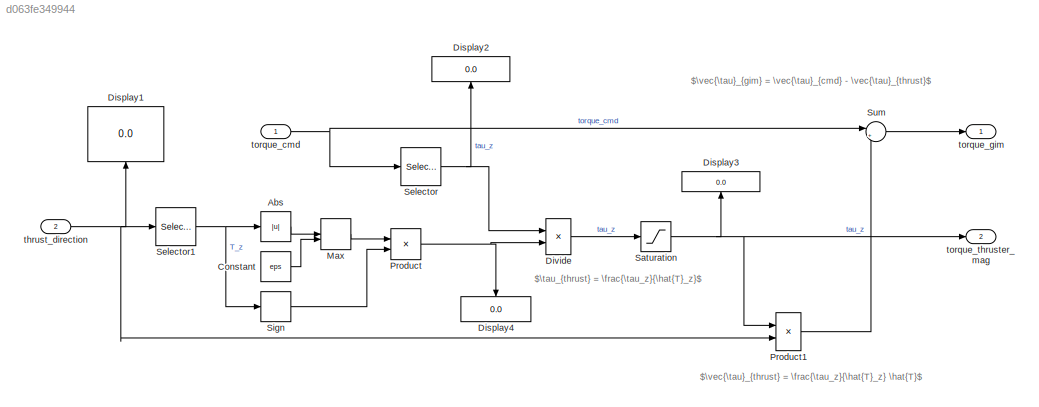
MODEL slx_d063fe349944
KIND model
CONFIG AbsTol = auto
CONFIG EnableMultiTasking = off
CONFIG FixedStep = 0.001
CONFIG MaxStep = auto
CONFIG MinStep = auto
CONFIG RelTol = 1e-3
CONFIG SampleTimeConstraint = Unconstrained
CONFIG SolverName = FixedStepAuto
CONFIG StartTime = 0.0
CONFIG StopTime = 10.0
BLOCK [Abs] Abs
  SaturateOnIntegerOverflow = off
BLOCK [Constant] Constant
  Value = eps
BLOCK [Display] Display1
  Decimation = 1
  NameLocation = right
BLOCK [Display] Display2
  Decimation = 1
  NameLocation = right
BLOCK [Display] Display3
  Decimation = 1
  NameLocation = right
BLOCK [Display] Display4
  Decimation = 1
  NameLocation = left
BLOCK [Product] Divide
  Inputs = */
BLOCK [MinMax] Max
  Function = max
  Inputs = 2
BLOCK [Product] Product
BLOCK [Product] Product1
BLOCK [Saturate] Saturation
  LowerLimit = -.45
  UpperLimit = .45
BLOCK [Selector] Selector
  IndexOptions = Index vector (dialog)
  Indices = 3
  InputPortWidth = 3
  OutputSizes = 1
BLOCK [Selector] Selector1
  IndexOptions = Index vector (dialog)
  Indices = 3
  InputPortWidth = 3
  OutputSizes = 1
BLOCK [Signum] Sign
BLOCK [Sum] Sum
  Inputs = |+-
BLOCK [Inport] thrust_direction
  NameLocation = left
  Port = 2
  PortDimensions = 3
BLOCK [Inport] torque_cmd
  NameLocation = left
  PortDimensions = 3
  Unit = N*m
BLOCK [Outport] torque_gim
  NameLocation = right
  PortDimensions = 3
  Unit = N*m
BLOCK [Outport] torque_thruster_mag
  NameLocation = right
  Port = 2
  PortDimensions = 1
  Unit = N*m
ANNOTATION (root): $\vec{\tau}_{gim} = \vec{\tau}_{cmd} - \vec{\tau}_{thrust}$
ANNOTATION (root): $\tau_{thrust} = \frac{\tau_z}{\hat{T}_z}$
ANNOTATION (root): $\vec{\tau}_{thrust} = \frac{\tau_z}{\hat{T}_z} \hat{T}$
LINE Abs:1 -> Max:1
LINE Constant:1 -> Max:2
LINE Divide:1 -> Saturation:1
LINE Max:1 -> Product:1
LINE Product1:1 -> Sum:2
NET Product:1 -> Display4:1, Divide:2
NET Saturation:1 -> Display3:1, Product1:1, torque_thruster_mag:1
NET Selector1:1 -> Abs:1, Sign:1
NET Selector:1 -> Display2:1, Divide:1
LINE Sign:1 -> Product:2
LINE Sum:1 -> torque_gim:1
NET thrust_direction:1 -> Display1:1, Product1:2, Selector1:1
NET torque_cmd:1 -> Selector:1, Sum:1
note: NET lines group one-source signal fan-out (src -> all destinations, sorted); 1:1 wires keep LINE
